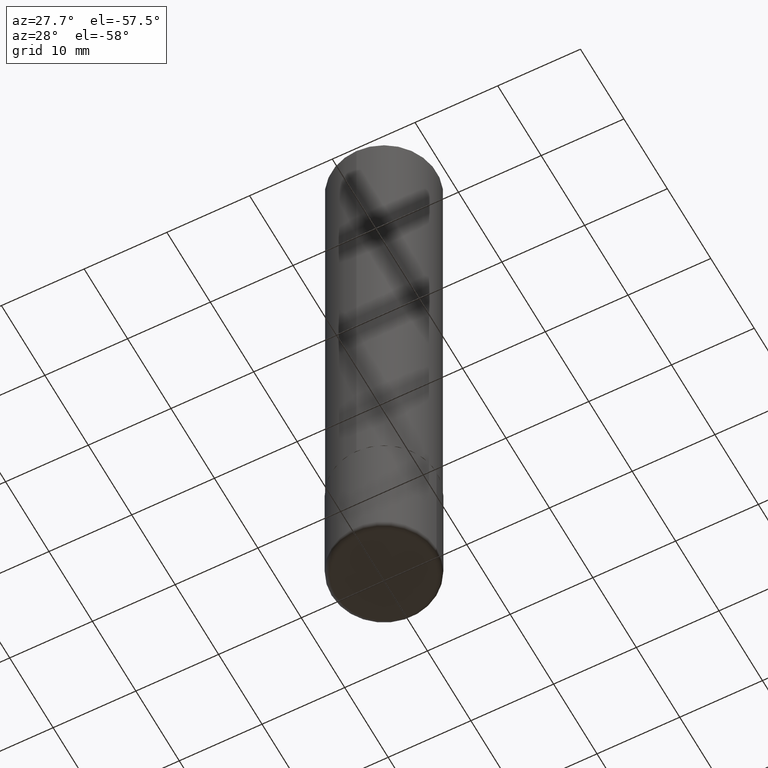
[diagram: clean part render]
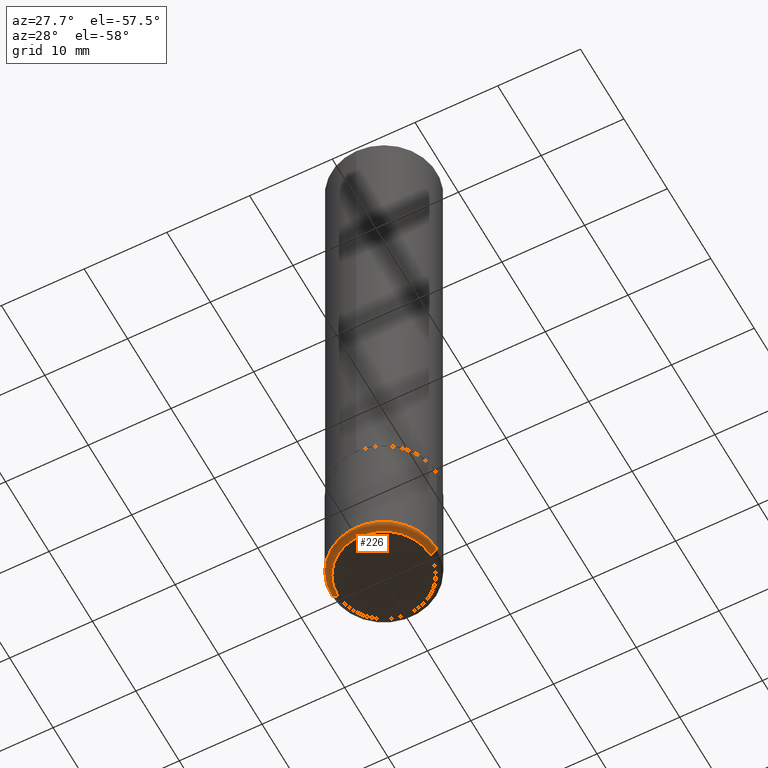
[diagram: same view with one face highlighted and labeled with its STEP entity id]
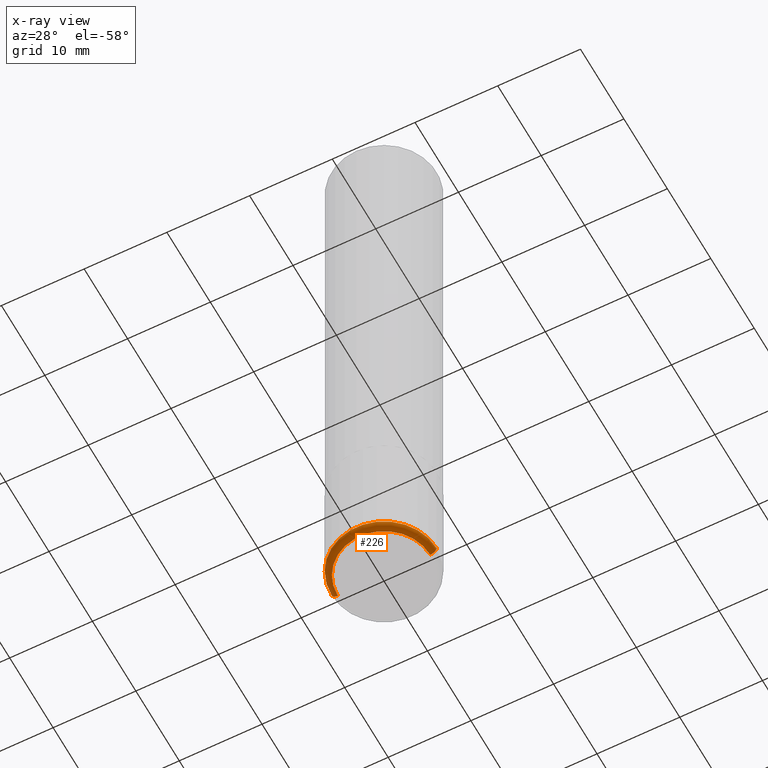
[diagram: x-ray of the same camera — body ghosted, the highlighted face saturated]
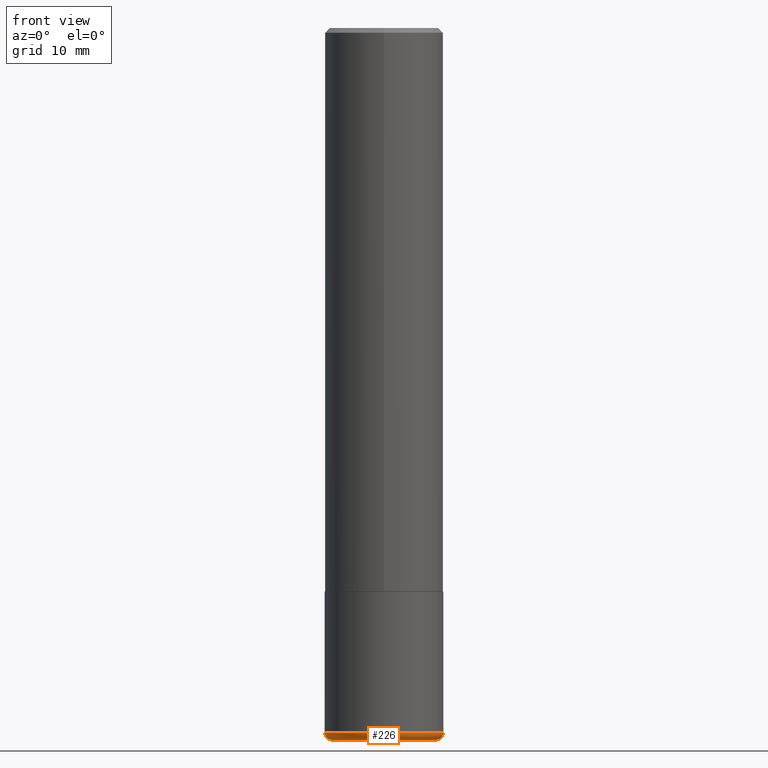
[diagram: same view with one face highlighted and labeled with its STEP entity id]
A machine part, auxiliary view. The second image highlights one B-rep face of the part: STEP entity #226.
The next image is the same camera in x-ray: the body ghosted, the highlighted face saturated — about 0% of this face is hidden behind the body in this view.
A second angle (front view) of the same face is appended — the face is thin or edge-on in the first view.
In plain terms, the highlighted toroidal blend (fillet) surface has major radius 5.588 mm and minor (blend) radius 0.762 mm.
Its self-contained STEP definition (entity closure, byte-faithful):
#3 = DIRECTION ( 'NONE',  ( -2.445468806185136597E-29, 3.491481338843145583E-15, 1.000000000000000000 ) ) ;
#6 = CARTESIAN_POINT ( 'NONE',  ( 0.2200000000000000011, -1.190595136545512292E-14, -2.970000000000000195 ) ) ;
#29 = CARTESIAN_POINT ( 'NONE',  ( 7.263042354369856275E-29, -1.036969957636414298E-14, -2.970000000000000195 ) ) ;
#30 = ORIENTED_EDGE ( 'NONE', *, *, #69, .F. ) ;
#50 = ORIENTED_EDGE ( 'NONE', *, *, #245, .T. ) ;
#52 = DIRECTION ( 'NONE',  ( 1.000000000000000000, -6.982962677686269866E-15, 0.000000000000000000 ) ) ;
#56 = CARTESIAN_POINT ( 'NONE',  ( 7.336406418555408669E-29, -1.047444401652943478E-14, -2.999999999999999556 ) ) ;
#65 = CIRCLE ( 'NONE', #203, 0.02999999999999971440 ) ;
#69 = EDGE_CURVE ( 'NONE', #184, #292, #65, .T. ) ;
#101 = CARTESIAN_POINT ( 'NONE',  ( 0.2200000000000000011, -1.201069580562041471E-14, -2.999999999999999556 ) ) ;
#107 = CARTESIAN_POINT ( 'NONE',  ( -0.2499999999999998612, -8.593342736963892519E-15, -2.970000000000000195 ) ) ;
#110 = DIRECTION ( 'NONE',  ( -1.000000000000000000, 7.105427357600993970E-15, 0.000000000000000000 ) ) ;
#158 = DIRECTION ( 'NONE',  ( 1.000000000000000000, -6.982962677686270655E-15, 0.000000000000000000 ) ) ;
#163 = VERTEX_POINT ( 'NONE', #101 ) ;
#175 = EDGE_CURVE ( 'NONE', #184, #163, #406, .T. ) ;
#184 = VERTEX_POINT ( 'NONE', #262 ) ;
#190 = EDGE_LOOP ( 'NONE', ( #30, #377, #50, #210 ) ) ;
#196 = CIRCLE ( 'NONE', #223, 0.02999999999999971440 ) ;
#203 = AXIS2_PLACEMENT_3D ( 'NONE', #383, #380, #110 ) ;
#210 = ORIENTED_EDGE ( 'NONE', *, *, #298, .F. ) ;
#218 = DIRECTION ( 'NONE',  ( -2.445468806185136597E-29, 3.491481338843145583E-15, 1.000000000000000000 ) ) ;
#223 = AXIS2_PLACEMENT_3D ( 'NONE', #6, #341, #52 ) ;
#226 = ADVANCED_FACE ( 'NONE', ( #256 ), #397, .T. ) ;
#227 = DIRECTION ( 'NONE',  ( -2.445468806185136597E-29, 3.491481338843145583E-15, 1.000000000000000000 ) ) ;
#245 = EDGE_CURVE ( 'NONE', #163, #333, #196, .T. ) ;
#256 = FACE_OUTER_BOUND ( 'NONE', #190, .T. ) ;
#262 = CARTESIAN_POINT ( 'NONE',  ( -0.2200000000000000011, -8.752296367410555115E-15, -2.999999999999999556 ) ) ;
#264 = CIRCLE ( 'NONE', #310, 0.2500000000000000000 ) ;
#287 = AXIS2_PLACEMENT_3D ( 'NONE', #56, #227, #158 ) ;
#292 = VERTEX_POINT ( 'NONE', #107 ) ;
#293 = CARTESIAN_POINT ( 'NONE',  ( 7.263042354369856275E-29, -1.036969957636414298E-14, -2.970000000000000195 ) ) ;
#297 = AXIS2_PLACEMENT_3D ( 'NONE', #293, #218, #375 ) ;
#298 = EDGE_CURVE ( 'NONE', #292, #333, #264, .T. ) ;
#310 = AXIS2_PLACEMENT_3D ( 'NONE', #29, #3, #348 ) ;
#333 = VERTEX_POINT ( 'NONE', #414 ) ;
#341 = DIRECTION ( 'NONE',  ( -6.982962677686266711E-15, -1.000000000000000000, 3.491481338843145583E-15 ) ) ;
#348 = DIRECTION ( 'NONE',  ( 1.000000000000000000, -6.982962677686270655E-15, 0.000000000000000000 ) ) ;
#375 = DIRECTION ( 'NONE',  ( 1.000000000000000000, -6.982962677686262766E-15, 4.883557194083111780E-29 ) ) ;
#377 = ORIENTED_EDGE ( 'NONE', *, *, #175, .T. ) ;
#380 = DIRECTION ( 'NONE',  ( 7.105427357601001859E-15, 1.000000000000000000, -3.491481338843145583E-15 ) ) ;
#383 = CARTESIAN_POINT ( 'NONE',  ( -0.2200000000000000011, -8.806505557691921187E-15, -2.970000000000000195 ) ) ;
#397 = TOROIDAL_SURFACE ( 'NONE', #297, 0.2200000000000000011, 0.02999999999999969705 ) ;
#406 = CIRCLE ( 'NONE', #287, 0.2200000000000000011 ) ;
#414 = CARTESIAN_POINT ( 'NONE',  ( 0.2499999999999998612, -1.211544024578571124E-14, -2.970000000000000195 ) ) ;